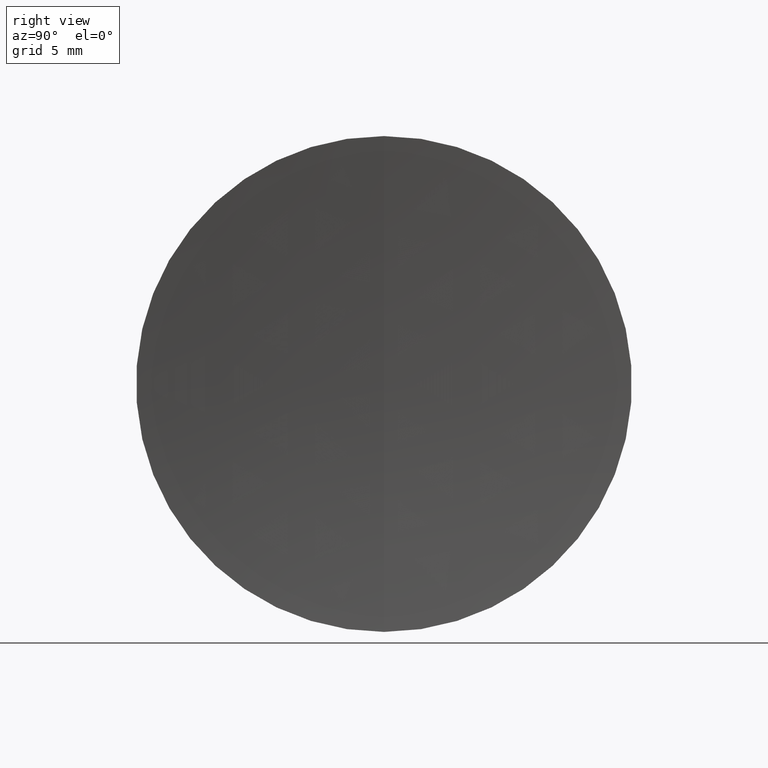
[diagram: clean part render]
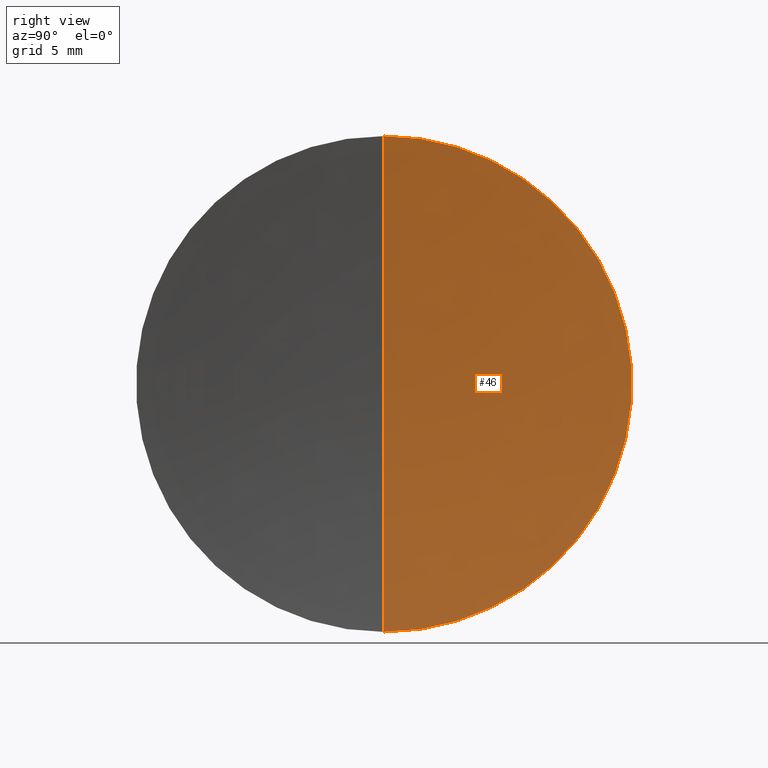
[diagram: same view with one face highlighted and labeled with its STEP entity id]
A machine part, right view. The second image highlights one B-rep face of the part: STEP entity #46.
In plain terms, the highlighted spherical surface has radius 112.08 mm.
Its self-contained STEP definition (entity closure, byte-faithful):
#10 = CARTESIAN_POINT ( 'NONE',  ( 44.02847447573057600, 0.0000000000000000000, -12.70000000000000300 ) ) ;
#23 = EDGE_CURVE ( 'NONE', #196, #159, #43, .T. ) ;
#27 = CARTESIAN_POINT ( 'NONE',  ( 155.3866192160233800, 0.0000000000000000000, 0.0000000000000000000 ) ) ;
#37 = CARTESIAN_POINT ( 'NONE',  ( 43.30661921602337100, 0.0000000000000000000, -6.862920662421767300E-015 ) ) ;
#42 = DIRECTION ( 'NONE',  ( 0.0000000000000000000, -1.000000000000000000, -1.224646799147353200E-016 ) ) ;
#43 = CIRCLE ( 'NONE', #244, 112.0800000000000000 ) ;
#46 = ADVANCED_FACE ( 'NONE', ( #118 ), #104, .F. ) ;
#56 = DIRECTION ( 'NONE',  ( -0.0000000000000000000, -1.000000000000000000, -0.0000000000000000000 ) ) ;
#61 = ORIENTED_EDGE ( 'NONE', *, *, #94, .F. ) ;
#70 = EDGE_LOOP ( 'NONE', ( #208, #327, #61 ) ) ;
#78 = DIRECTION ( 'NONE',  ( 0.0000000000000000000, 0.0000000000000000000, 1.000000000000000000 ) ) ;
#81 = CIRCLE ( 'NONE', #124, 12.70000000000001700 ) ;
#89 = CIRCLE ( 'NONE', #221, 112.0800000000000000 ) ;
#94 = EDGE_CURVE ( 'NONE', #145, #159, #89, .T. ) ;
#104 = SPHERICAL_SURFACE ( 'NONE', #168, 112.0800000000000000 ) ;
#109 = CARTESIAN_POINT ( 'NONE',  ( 44.02847447573057600, -1.555301434917138800E-015, 12.70000000000000300 ) ) ;
#118 = FACE_OUTER_BOUND ( 'NONE', #70, .T. ) ;
#124 = AXIS2_PLACEMENT_3D ( 'NONE', #170, #298, #78 ) ;
#145 = VERTEX_POINT ( 'NONE', #10 ) ;
#159 = VERTEX_POINT ( 'NONE', #37 ) ;
#168 = AXIS2_PLACEMENT_3D ( 'NONE', #270, #56, #204 ) ;
#170 = CARTESIAN_POINT ( 'NONE',  ( 44.02847447573056900, 0.0000000000000000000, 0.0000000000000000000 ) ) ;
#196 = VERTEX_POINT ( 'NONE', #109 ) ;
#204 = DIRECTION ( 'NONE',  ( 0.0000000000000000000, 0.0000000000000000000, -1.000000000000000000 ) ) ;
#208 = ORIENTED_EDGE ( 'NONE', *, *, #312, .F. ) ;
#221 = AXIS2_PLACEMENT_3D ( 'NONE', #27, #245, #271 ) ;
#244 = AXIS2_PLACEMENT_3D ( 'NONE', #323, #42, #287 ) ;
#245 = DIRECTION ( 'NONE',  ( 0.0000000000000000000, 1.000000000000000000, -0.0000000000000000000 ) ) ;
#270 = CARTESIAN_POINT ( 'NONE',  ( 155.3866192160233800, 0.0000000000000000000, 0.0000000000000000000 ) ) ;
#271 = DIRECTION ( 'NONE',  ( 0.0000000000000000000, 0.0000000000000000000, 1.000000000000000000 ) ) ;
#287 = DIRECTION ( 'NONE',  ( 0.0000000000000000000, 1.224646799147353200E-016, -1.000000000000000000 ) ) ;
#298 = DIRECTION ( 'NONE',  ( -1.000000000000000000, -0.0000000000000000000, -0.0000000000000000000 ) ) ;
#312 = EDGE_CURVE ( 'NONE', #196, #145, #81, .T. ) ;
#323 = CARTESIAN_POINT ( 'NONE',  ( 155.3866192160233800, 0.0000000000000000000, 0.0000000000000000000 ) ) ;
#327 = ORIENTED_EDGE ( 'NONE', *, *, #23, .T. ) ;